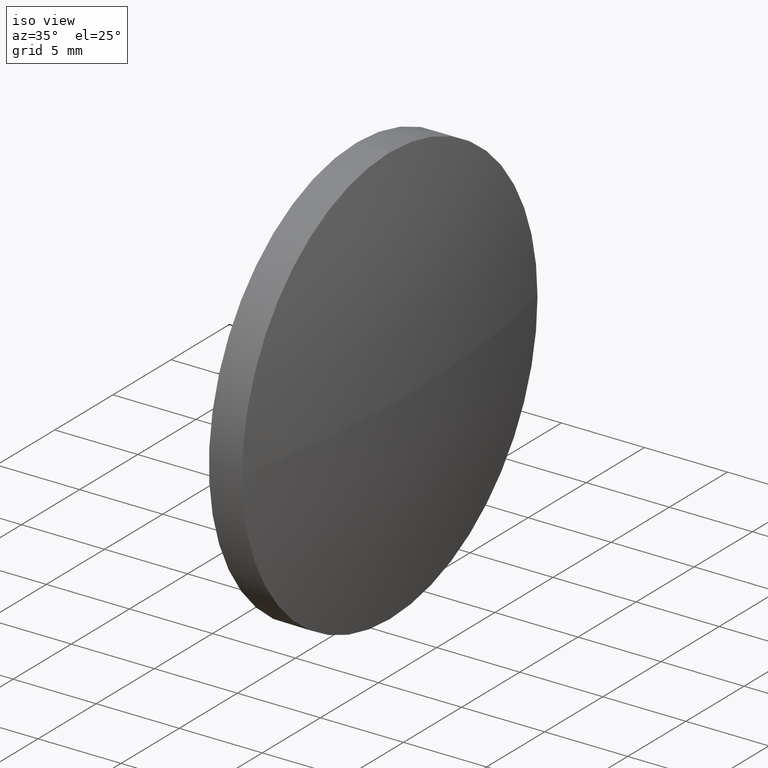
[diagram: clean part render]
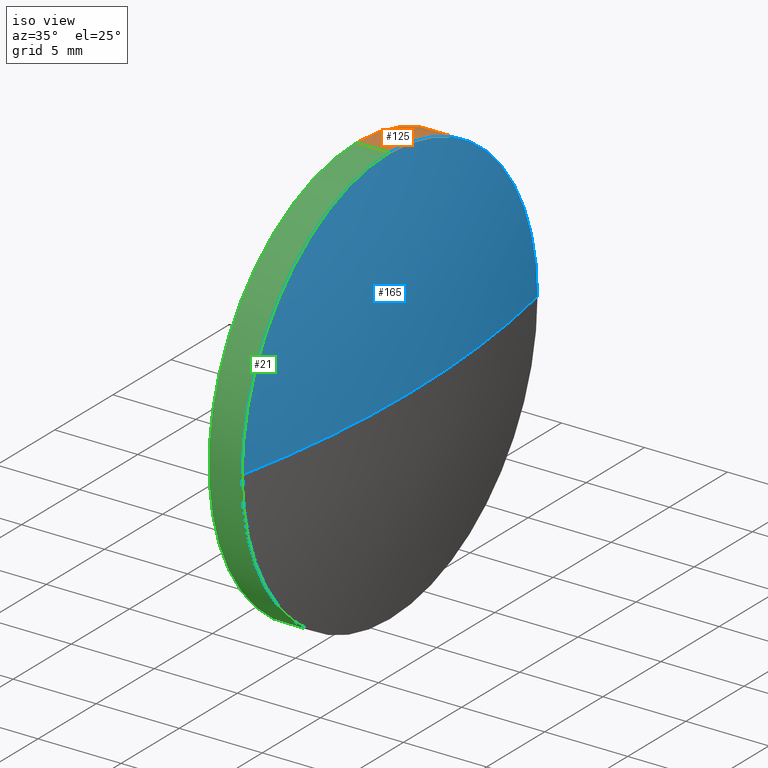
[diagram: same view with three faces highlighted in distinct colors, each labeled with its STEP entity id]
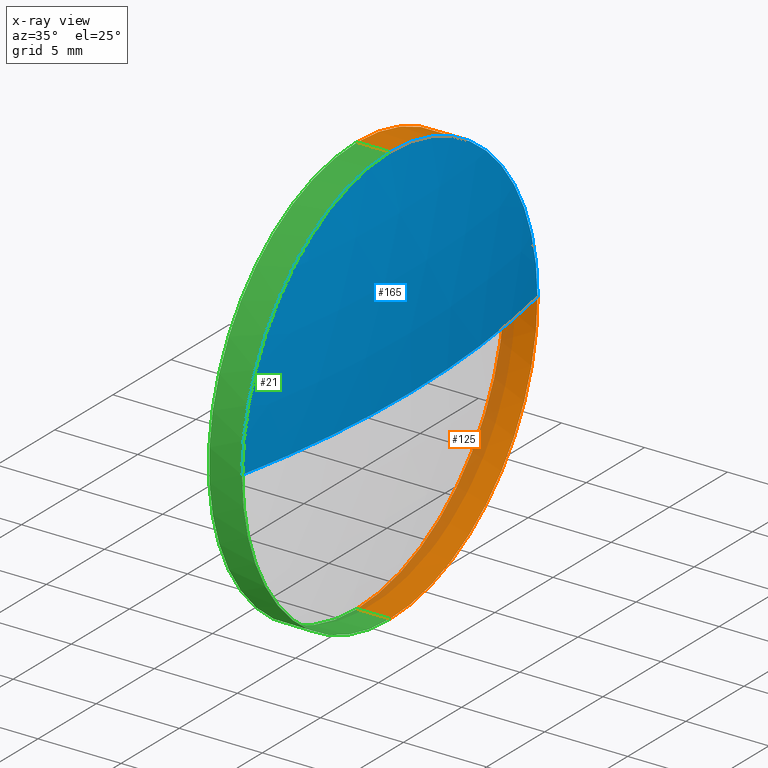
[diagram: x-ray of the same camera — body ghosted, the three highlighted faces saturated]
A machine part, iso view with three faces highlighted in distinct colors.
The next image is the same camera in x-ray (body ghosted, the three faces saturated) — at least one of them is partly hidden behind the body in this view.
Their STEP definitions:

[orange] entity #125 — the highlighted cylindrical surface (partial cylindrical patch) has radius 12.7 mm, axis along (-1, -0, -0).
#4 = EDGE_CURVE ( 'NONE', #126, #164, #25, .T. ) ;
#9 = CARTESIAN_POINT ( 'NONE',  ( 384.2381530977999100, 40.44166342956046400, -12.70000000000000300 ) ) ;
#13 = VERTEX_POINT ( 'NONE', #143 ) ;
#24 = VECTOR ( 'NONE', #91, 1000.000000000000000 ) ;
#25 = CIRCLE ( 'NONE', #152, 12.70000000000000300 ) ;
#27 = CARTESIAN_POINT ( 'NONE',  ( 389.8680491489571400, 40.44166342956046400, 0.0000000000000000000 ) ) ;
#32 = DIRECTION ( 'NONE',  ( 0.0000000000000000000, 0.0000000000000000000, 1.000000000000000000 ) ) ;
#45 = CARTESIAN_POINT ( 'NONE',  ( 391.8680491489570800, 40.44166342956046400, 0.0000000000000000000 ) ) ;
#46 = EDGE_LOOP ( 'NONE', ( #53, #147, #137, #78, #81 ) ) ;
#47 = CARTESIAN_POINT ( 'NONE',  ( 389.8680491489571400, 40.44166342956046400, -12.70000000000000300 ) ) ;
#48 = EDGE_CURVE ( 'NONE', #164, #58, #56, .T. ) ;
#49 = DIRECTION ( 'NONE',  ( -1.000000000000000000, -0.0000000000000000000, -0.0000000000000000000 ) ) ;
#52 = AXIS2_PLACEMENT_3D ( 'NONE', #27, #74, #32 ) ;
#53 = ORIENTED_EDGE ( 'NONE', *, *, #48, .T. ) ;
#56 = CIRCLE ( 'NONE', #72, 12.70000000000000300 ) ;
#57 = EDGE_CURVE ( 'NONE', #13, #93, #176, .T. ) ;
#58 = VERTEX_POINT ( 'NONE', #102 ) ;
#63 = CARTESIAN_POINT ( 'NONE',  ( 391.8680491489570800, 40.44166342956046400, 0.0000000000000000000 ) ) ;
#66 = CARTESIAN_POINT ( 'NONE',  ( 384.2381530977999100, 40.44166342956046400, 0.0000000000000000000 ) ) ;
#70 = VECTOR ( 'NONE', #170, 1000.000000000000000 ) ;
#72 = AXIS2_PLACEMENT_3D ( 'NONE', #45, #160, #103 ) ;
#74 = DIRECTION ( 'NONE',  ( -1.000000000000000000, -0.0000000000000000000, -0.0000000000000000000 ) ) ;
#78 = ORIENTED_EDGE ( 'NONE', *, *, #181, .F. ) ;
#80 = CYLINDRICAL_SURFACE ( 'NONE', #97, 12.70000000000000300 ) ;
#81 = ORIENTED_EDGE ( 'NONE', *, *, #4, .T. ) ;
#89 = CARTESIAN_POINT ( 'NONE',  ( 391.8680491489570800, 40.44166342956046400, 12.70000000000000300 ) ) ;
#91 = DIRECTION ( 'NONE',  ( -1.000000000000000000, -0.0000000000000000000, -0.0000000000000000000 ) ) ;
#93 = VERTEX_POINT ( 'NONE', #47 ) ;
#97 = AXIS2_PLACEMENT_3D ( 'NONE', #66, #49, #109 ) ;
#101 = DIRECTION ( 'NONE',  ( -1.000000000000000000, -0.0000000000000000000, -0.0000000000000000000 ) ) ;
#102 = CARTESIAN_POINT ( 'NONE',  ( 391.8680491489570800, 40.44166342956046400, -12.70000000000000300 ) ) ;
#103 = DIRECTION ( 'NONE',  ( 0.0000000000000000000, 0.0000000000000000000, 1.000000000000000000 ) ) ;
#107 = CARTESIAN_POINT ( 'NONE',  ( 391.8680491489570800, 53.14166342956043100, 0.0000000000000000000 ) ) ;
#109 = DIRECTION ( 'NONE',  ( 0.0000000000000000000, 0.0000000000000000000, 1.000000000000000000 ) ) ;
#120 = DIRECTION ( 'NONE',  ( 0.0000000000000000000, 0.0000000000000000000, 1.000000000000000000 ) ) ;
#125 = ADVANCED_FACE ( 'NONE', ( #140 ), #80, .T. ) ;
#126 = VERTEX_POINT ( 'NONE', #89 ) ;
#131 = LINE ( 'NONE', #9, #70 ) ;
#136 = LINE ( 'NONE', #166, #24 ) ;
#137 = ORIENTED_EDGE ( 'NONE', *, *, #57, .F. ) ;
#140 = FACE_OUTER_BOUND ( 'NONE', #46, .T. ) ;
#142 = EDGE_CURVE ( 'NONE', #58, #93, #131, .T. ) ;
#143 = CARTESIAN_POINT ( 'NONE',  ( 389.8680491489571400, 40.44166342956046400, 12.70000000000000300 ) ) ;
#147 = ORIENTED_EDGE ( 'NONE', *, *, #142, .T. ) ;
#152 = AXIS2_PLACEMENT_3D ( 'NONE', #63, #101, #120 ) ;
#160 = DIRECTION ( 'NONE',  ( -1.000000000000000000, -0.0000000000000000000, -0.0000000000000000000 ) ) ;
#164 = VERTEX_POINT ( 'NONE', #107 ) ;
#166 = CARTESIAN_POINT ( 'NONE',  ( 384.2381530977999100, 40.44166342956046400, 12.70000000000000300 ) ) ;
#170 = DIRECTION ( 'NONE',  ( -1.000000000000000000, -0.0000000000000000000, -0.0000000000000000000 ) ) ;
#176 = CIRCLE ( 'NONE', #52, 12.70000000000000300 ) ;
#181 = EDGE_CURVE ( 'NONE', #126, #13, #136, .T. ) ;

[blue] entity #165 — the highlighted spherical surface has radius 62.6846 mm.
#4 = EDGE_CURVE ( 'NONE', #126, #164, #25, .T. ) ;
#7 = DIRECTION ( 'NONE',  ( 1.000000000000000000, 0.0000000000000000000, 0.0000000000000000000 ) ) ;
#18 = DIRECTION ( 'NONE',  ( 0.0000000000000000000, 1.000000000000000000, 0.0000000000000000000 ) ) ;
#25 = CIRCLE ( 'NONE', #152, 12.70000000000000300 ) ;
#33 = CARTESIAN_POINT ( 'NONE',  ( 330.4834337643415600, 40.44166342956027200, 0.0000000000000000000 ) ) ;
#42 = ORIENTED_EDGE ( 'NONE', *, *, #175, .T. ) ;
#43 = AXIS2_PLACEMENT_3D ( 'NONE', #105, #168, #50 ) ;
#50 = DIRECTION ( 'NONE',  ( 0.0000000000000000000, 0.0000000000000000000, 1.000000000000000000 ) ) ;
#63 = CARTESIAN_POINT ( 'NONE',  ( 391.8680491489570800, 40.44166342956046400, 0.0000000000000000000 ) ) ;
#65 = CIRCLE ( 'NONE', #68, 62.68461538461556200 ) ;
#68 = AXIS2_PLACEMENT_3D ( 'NONE', #87, #76, #7 ) ;
#76 = DIRECTION ( 'NONE',  ( -0.0000000000000000000, 0.0000000000000000000, 1.000000000000000000 ) ) ;
#87 = CARTESIAN_POINT ( 'NONE',  ( 330.4834337643415600, 40.44166342956027200, 0.0000000000000000000 ) ) ;
#88 = ORIENTED_EDGE ( 'NONE', *, *, #4, .F. ) ;
#89 = CARTESIAN_POINT ( 'NONE',  ( 391.8680491489570800, 40.44166342956046400, 12.70000000000000300 ) ) ;
#90 = DIRECTION ( 'NONE',  ( 0.0000000000000000000, 1.000000000000000000, 1.224646799147353200E-016 ) ) ;
#96 = AXIS2_PLACEMENT_3D ( 'NONE', #134, #145, #90 ) ;
#98 = SPHERICAL_SURFACE ( 'NONE', #139, 62.68461538461556200 ) ;
#101 = DIRECTION ( 'NONE',  ( -1.000000000000000000, -0.0000000000000000000, -0.0000000000000000000 ) ) ;
#104 = FACE_OUTER_BOUND ( 'NONE', #177, .T. ) ;
#105 = CARTESIAN_POINT ( 'NONE',  ( 391.8680491489570800, 40.44166342956046400, 0.0000000000000000000 ) ) ;
#107 = CARTESIAN_POINT ( 'NONE',  ( 391.8680491489570800, 53.14166342956043100, 0.0000000000000000000 ) ) ;
#115 = CIRCLE ( 'NONE', #96, 62.68461538461556200 ) ;
#116 = VERTEX_POINT ( 'NONE', #183 ) ;
#120 = DIRECTION ( 'NONE',  ( 0.0000000000000000000, 0.0000000000000000000, 1.000000000000000000 ) ) ;
#126 = VERTEX_POINT ( 'NONE', #89 ) ;
#127 = EDGE_CURVE ( 'NONE', #159, #126, #185, .T. ) ;
#133 = EDGE_CURVE ( 'NONE', #116, #159, #115, .T. ) ;
#134 = CARTESIAN_POINT ( 'NONE',  ( 330.4834337643415600, 40.44166342956027200, 0.0000000000000000000 ) ) ;
#139 = AXIS2_PLACEMENT_3D ( 'NONE', #33, #148, #18 ) ;
#145 = DIRECTION ( 'NONE',  ( 0.0000000000000000000, 1.224646799147353200E-016, -1.000000000000000000 ) ) ;
#146 = CARTESIAN_POINT ( 'NONE',  ( 391.8680491489570800, 27.74166342956030500, -1.555301434917134300E-015 ) ) ;
#148 = DIRECTION ( 'NONE',  ( -0.0000000000000000000, 0.0000000000000000000, -1.000000000000000000 ) ) ;
#152 = AXIS2_PLACEMENT_3D ( 'NONE', #63, #101, #120 ) ;
#154 = ORIENTED_EDGE ( 'NONE', *, *, #133, .F. ) ;
#159 = VERTEX_POINT ( 'NONE', #146 ) ;
#164 = VERTEX_POINT ( 'NONE', #107 ) ;
#165 = ADVANCED_FACE ( 'NONE', ( #104 ), #98, .T. ) ;
#168 = DIRECTION ( 'NONE',  ( -1.000000000000000000, -0.0000000000000000000, -0.0000000000000000000 ) ) ;
#169 = ORIENTED_EDGE ( 'NONE', *, *, #127, .F. ) ;
#175 = EDGE_CURVE ( 'NONE', #116, #164, #65, .T. ) ;
#177 = EDGE_LOOP ( 'NONE', ( #154, #42, #88, #169 ) ) ;
#183 = CARTESIAN_POINT ( 'NONE',  ( 393.1680491489571000, 40.44166342956027900, 0.0000000000000000000 ) ) ;
#185 = CIRCLE ( 'NONE', #43, 12.70000000000000300 ) ;

[green] entity #21 — the highlighted cylindrical surface (partial cylindrical patch) has radius 12.7 mm, axis along (-1, -0, -0).
#5 = CARTESIAN_POINT ( 'NONE',  ( 384.2381530977999100, 40.44166342956046400, 0.0000000000000000000 ) ) ;
#8 = ORIENTED_EDGE ( 'NONE', *, *, #127, .T. ) ;
#9 = CARTESIAN_POINT ( 'NONE',  ( 384.2381530977999100, 40.44166342956046400, -12.70000000000000300 ) ) ;
#13 = VERTEX_POINT ( 'NONE', #143 ) ;
#14 = EDGE_CURVE ( 'NONE', #58, #159, #184, .T. ) ;
#17 = CARTESIAN_POINT ( 'NONE',  ( 389.8680491489571400, 40.44166342956046400, 0.0000000000000000000 ) ) ;
#21 = ADVANCED_FACE ( 'NONE', ( #69 ), #153, .T. ) ;
#24 = VECTOR ( 'NONE', #91, 1000.000000000000000 ) ;
#29 = DIRECTION ( 'NONE',  ( -1.000000000000000000, -0.0000000000000000000, -0.0000000000000000000 ) ) ;
#34 = EDGE_CURVE ( 'NONE', #93, #13, #99, .T. ) ;
#37 = ORIENTED_EDGE ( 'NONE', *, *, #34, .F. ) ;
#41 = AXIS2_PLACEMENT_3D ( 'NONE', #180, #62, #132 ) ;
#43 = AXIS2_PLACEMENT_3D ( 'NONE', #105, #168, #50 ) ;
#47 = CARTESIAN_POINT ( 'NONE',  ( 389.8680491489571400, 40.44166342956046400, -12.70000000000000300 ) ) ;
#50 = DIRECTION ( 'NONE',  ( 0.0000000000000000000, 0.0000000000000000000, 1.000000000000000000 ) ) ;
#58 = VERTEX_POINT ( 'NONE', #102 ) ;
#62 = DIRECTION ( 'NONE',  ( -1.000000000000000000, -0.0000000000000000000, -0.0000000000000000000 ) ) ;
#64 = AXIS2_PLACEMENT_3D ( 'NONE', #5, #29, #86 ) ;
#69 = FACE_OUTER_BOUND ( 'NONE', #128, .T. ) ;
#70 = VECTOR ( 'NONE', #170, 1000.000000000000000 ) ;
#85 = ORIENTED_EDGE ( 'NONE', *, *, #14, .T. ) ;
#86 = DIRECTION ( 'NONE',  ( 0.0000000000000000000, 0.0000000000000000000, 1.000000000000000000 ) ) ;
#89 = CARTESIAN_POINT ( 'NONE',  ( 391.8680491489570800, 40.44166342956046400, 12.70000000000000300 ) ) ;
#91 = DIRECTION ( 'NONE',  ( -1.000000000000000000, -0.0000000000000000000, -0.0000000000000000000 ) ) ;
#93 = VERTEX_POINT ( 'NONE', #47 ) ;
#99 = CIRCLE ( 'NONE', #162, 12.70000000000000300 ) ;
#102 = CARTESIAN_POINT ( 'NONE',  ( 391.8680491489570800, 40.44166342956046400, -12.70000000000000300 ) ) ;
#105 = CARTESIAN_POINT ( 'NONE',  ( 391.8680491489570800, 40.44166342956046400, 0.0000000000000000000 ) ) ;
#118 = DIRECTION ( 'NONE',  ( 0.0000000000000000000, 0.0000000000000000000, 1.000000000000000000 ) ) ;
#119 = ORIENTED_EDGE ( 'NONE', *, *, #181, .T. ) ;
#126 = VERTEX_POINT ( 'NONE', #89 ) ;
#127 = EDGE_CURVE ( 'NONE', #159, #126, #185, .T. ) ;
#128 = EDGE_LOOP ( 'NONE', ( #156, #85, #8, #119, #37 ) ) ;
#131 = LINE ( 'NONE', #9, #70 ) ;
#132 = DIRECTION ( 'NONE',  ( 0.0000000000000000000, 0.0000000000000000000, 1.000000000000000000 ) ) ;
#136 = LINE ( 'NONE', #166, #24 ) ;
#142 = EDGE_CURVE ( 'NONE', #58, #93, #131, .T. ) ;
#143 = CARTESIAN_POINT ( 'NONE',  ( 389.8680491489571400, 40.44166342956046400, 12.70000000000000300 ) ) ;
#146 = CARTESIAN_POINT ( 'NONE',  ( 391.8680491489570800, 27.74166342956030500, -1.555301434917134300E-015 ) ) ;
#153 = CYLINDRICAL_SURFACE ( 'NONE', #64, 12.70000000000000300 ) ;
#156 = ORIENTED_EDGE ( 'NONE', *, *, #142, .F. ) ;
#158 = DIRECTION ( 'NONE',  ( -1.000000000000000000, -0.0000000000000000000, -0.0000000000000000000 ) ) ;
#159 = VERTEX_POINT ( 'NONE', #146 ) ;
#162 = AXIS2_PLACEMENT_3D ( 'NONE', #17, #158, #118 ) ;
#166 = CARTESIAN_POINT ( 'NONE',  ( 384.2381530977999100, 40.44166342956046400, 12.70000000000000300 ) ) ;
#168 = DIRECTION ( 'NONE',  ( -1.000000000000000000, -0.0000000000000000000, -0.0000000000000000000 ) ) ;
#170 = DIRECTION ( 'NONE',  ( -1.000000000000000000, -0.0000000000000000000, -0.0000000000000000000 ) ) ;
#180 = CARTESIAN_POINT ( 'NONE',  ( 391.8680491489570800, 40.44166342956046400, 0.0000000000000000000 ) ) ;
#181 = EDGE_CURVE ( 'NONE', #126, #13, #136, .T. ) ;
#184 = CIRCLE ( 'NONE', #41, 12.70000000000000300 ) ;
#185 = CIRCLE ( 'NONE', #43, 12.70000000000000300 ) ;